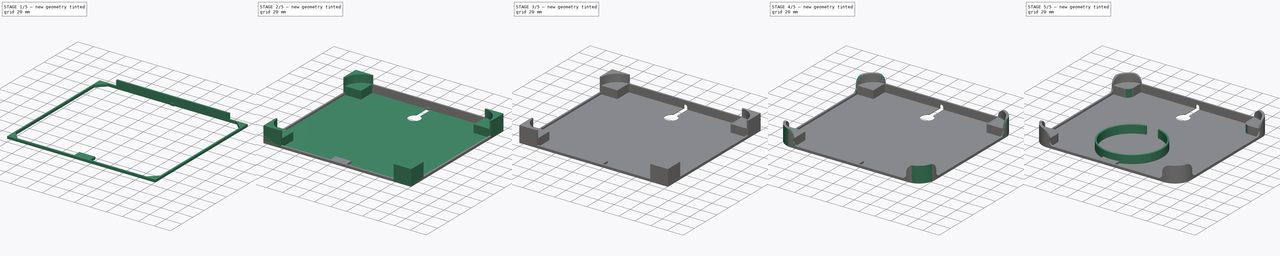
[diagram: build sequence overview — one tinted view per stage of 5, left to right]
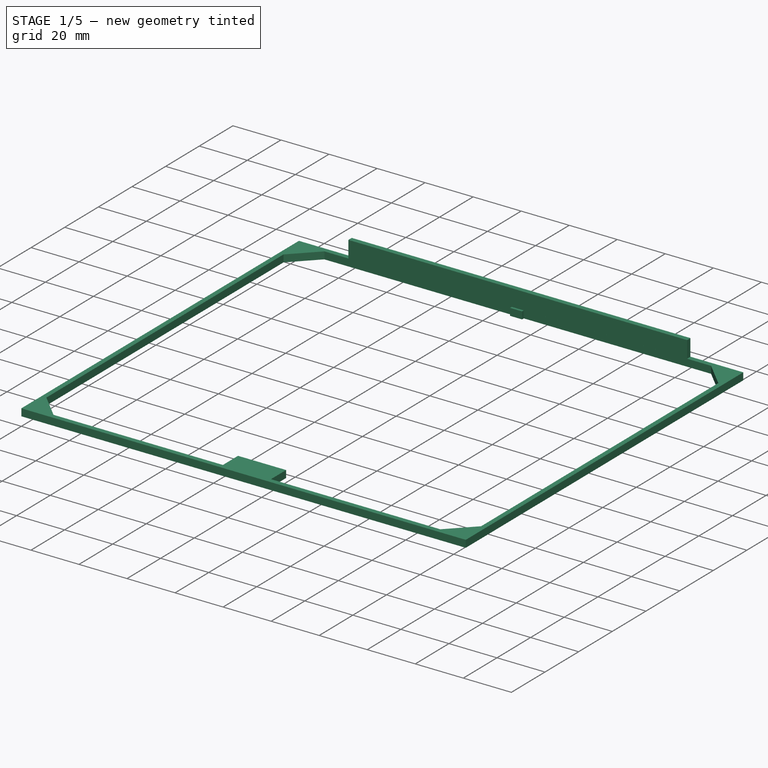
[diagram: stage 1 of 5 — iso view after this stage's code; geometry added in this stage tinted green]
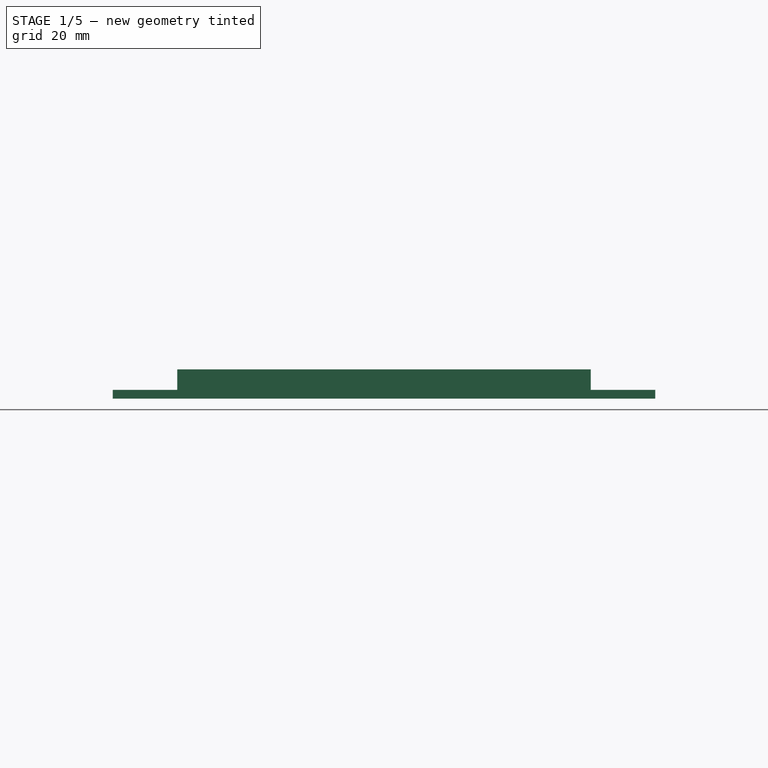
[diagram: stage 1 of 5 — front view after this stage's code; geometry added in this stage tinted green]
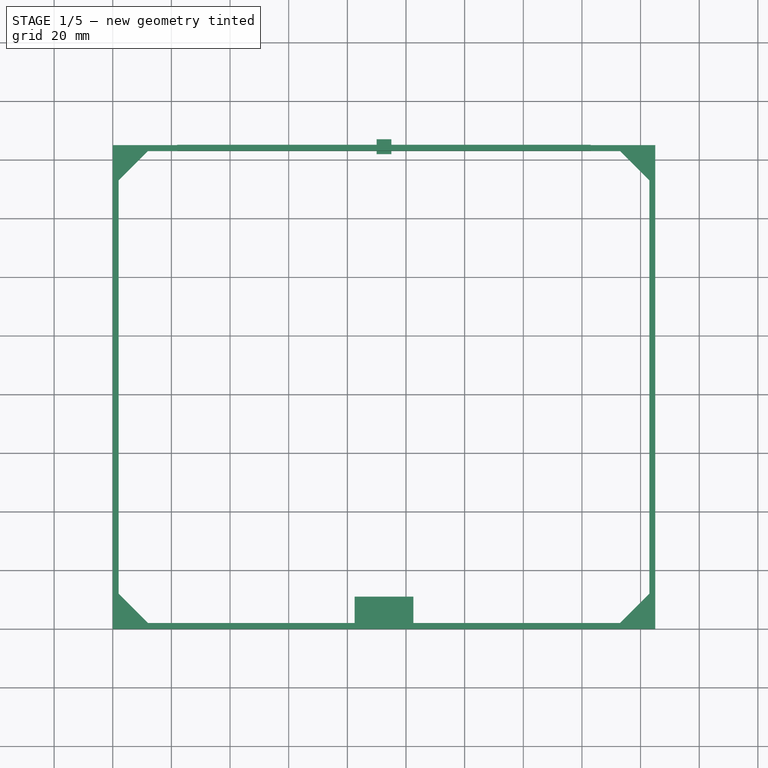
[diagram: stage 1 of 5 — top view after this stage's code; geometry added in this stage tinted green]
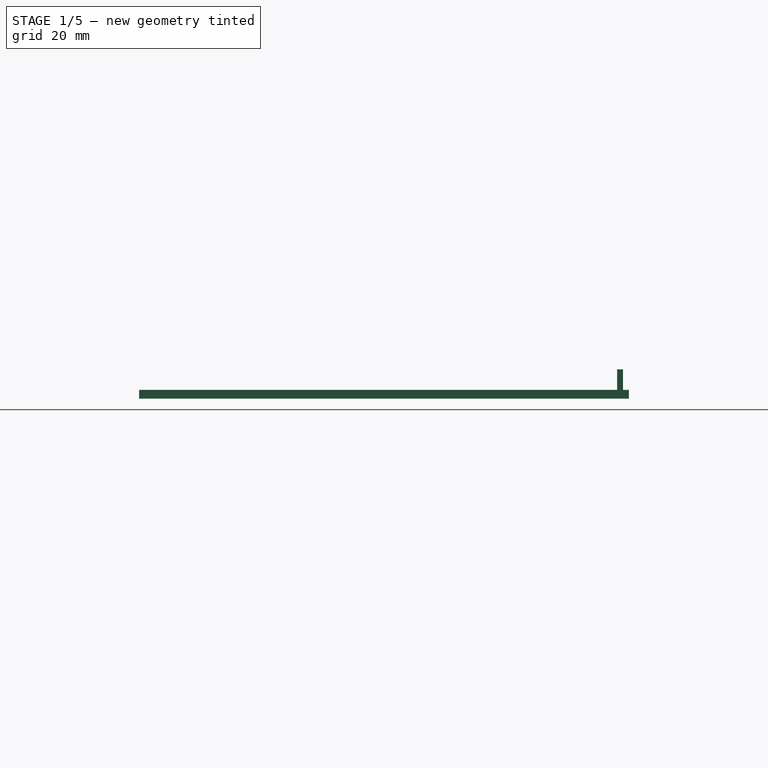
[diagram: stage 1 of 5 — right view after this stage's code; geometry added in this stage tinted green]
FCSTD DOCUMENT  (FreeCAD 0.16R6706 (Git))
Label: WirelessChargerPlatform_1.1
License: All rights reserved
LicenseURL: http://en.wikipedia.org/wiki/All_rights_reserved
objects: Sketcher::SketchObject×6, PartDesign::Pad×6, PartDesign::Fillet×4, Part::Box×3, Part::Cut×3, Part::Cylinder×1, Part::MultiFuse×1
note: 30 computed .brp shape members not serialized (recipe doc carries the construction recipe); baked Part::Feature solids carry a one-line shape summary decoded from their .brp

FEATURE [Sketcher::SketchObject] Sketch006
  sketch-geometry (4):
    g0: LineSegment StartX=82.5 StartY=11 StartZ=0 EndX=102.5 EndY=11 EndZ=0
    g1: LineSegment StartX=102.5 StartY=11 StartZ=0 EndX=102.5 EndY=0 EndZ=0
    g2: LineSegment StartX=102.5 StartY=0 StartZ=0 EndX=82.5 EndY=0 EndZ=0
    g3: LineSegment StartX=82.5 StartY=0 StartZ=0 EndX=82.5 EndY=11 EndZ=0
  constraints (12):
    c: Coincident(g0,g1)
    c: Coincident(g1,g2)
    c: Coincident(g2,g3)
    c: Coincident(g3,g0)
    c: Horizontal(g0)
    c: Horizontal(g2)
    c: Vertical(g1)
    c: Vertical(g3)
    c: DistanceX(g2,g1) = 20
    c: DistanceY(g2,g0) = 11
    c: DistanceX(g-1,g2) = 82.5
    c: DistanceY(g-1,g2) = 0
FEATURE [PartDesign::Pad] Pad006
  Length = 3
  Length2 = 100
  Sketch = -> Sketch006
  Type = 0
FEATURE [Part::Box] Box001  label="Würfel"
  Height = 10
  Length = 141
  Placement = pos=(22,163,0) rot=(0,0,1;0rad)
  Width = 2
FEATURE [PartDesign::Pad] Pad
  Length = 3
  Length2 = 100
  Sketch = -> Sketch
  Type = 0
FEATURE [Part::Box] Box002  label="Würfel001"
  Height = 3
  Length = 5
  Placement = pos=(90,162,0) rot=(0,0,1;0rad)
  Width = 5
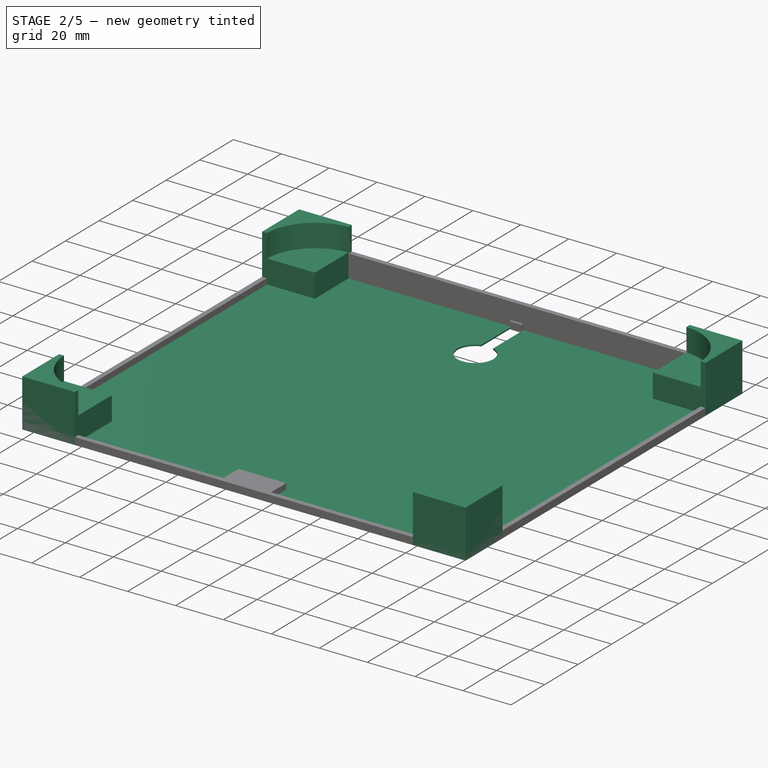
[diagram: stage 2 of 5 — iso view after this stage's code; geometry added in this stage tinted green]
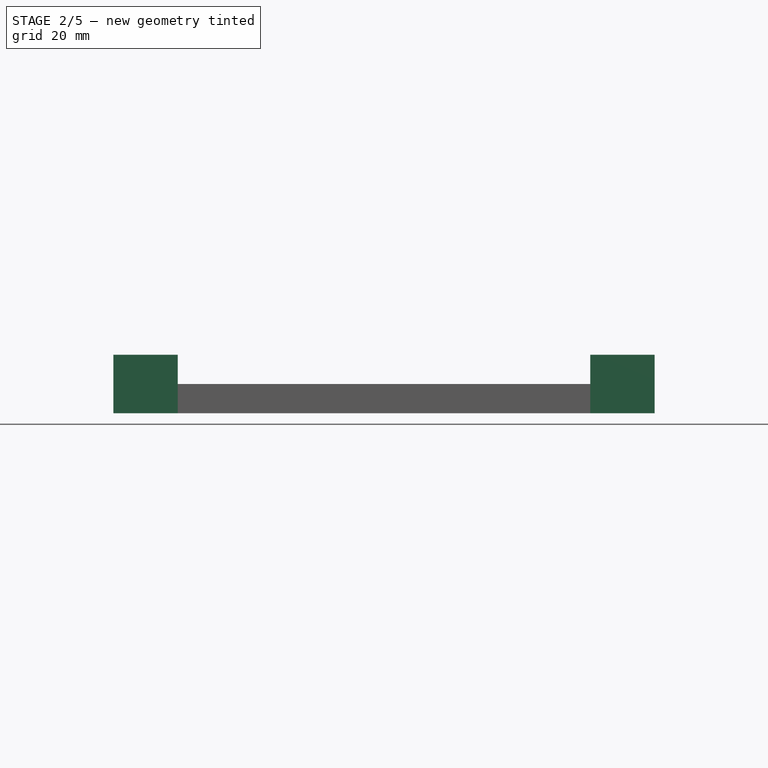
[diagram: stage 2 of 5 — front view after this stage's code; geometry added in this stage tinted green]
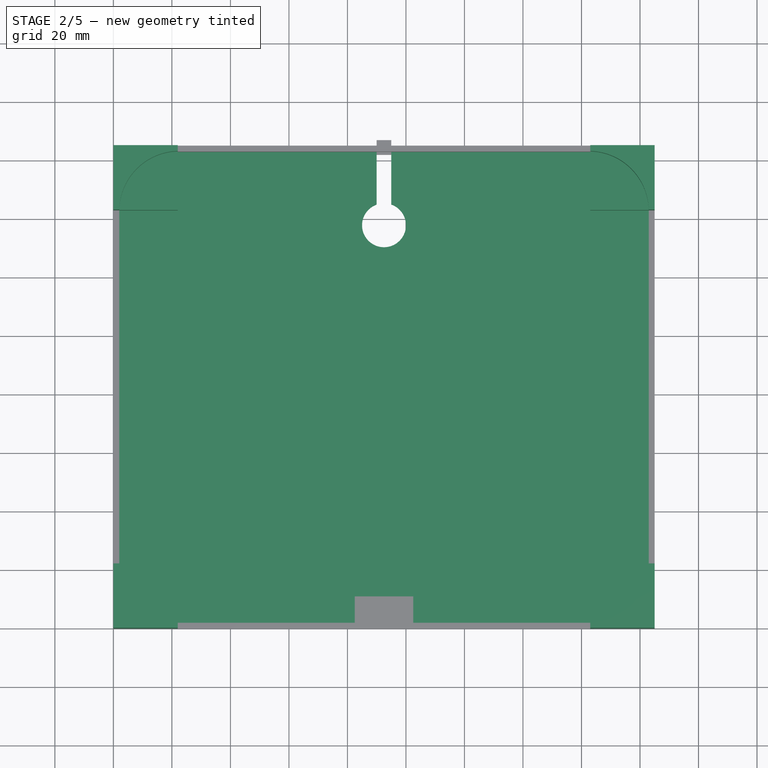
[diagram: stage 2 of 5 — top view after this stage's code; geometry added in this stage tinted green]
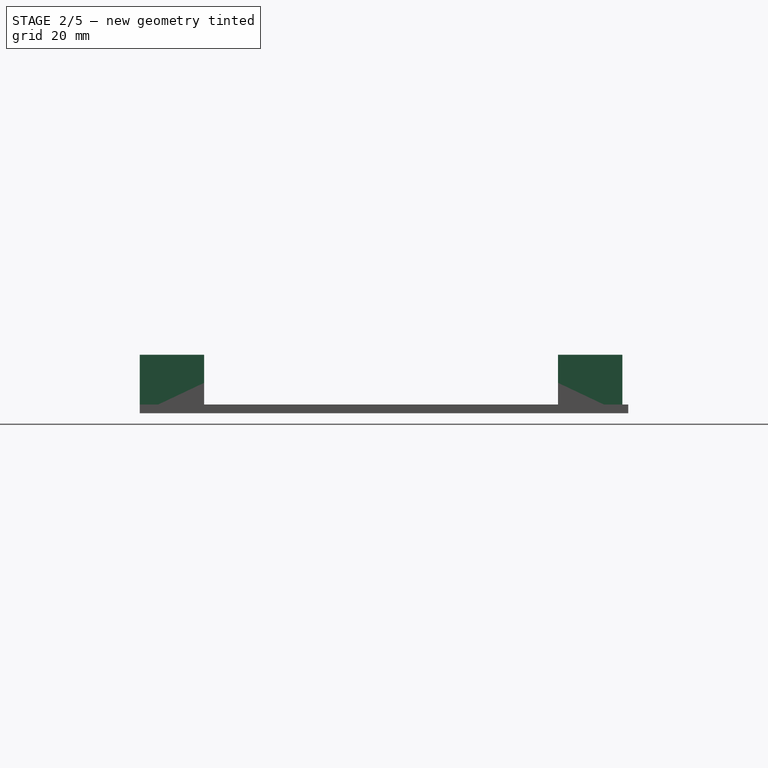
[diagram: stage 2 of 5 — right view after this stage's code; geometry added in this stage tinted green]
FEATURE [Sketcher::SketchObject] Sketch003
  sketch-geometry (16):
    g0: LineSegment StartX=0 StartY=165 StartZ=0 EndX=22 EndY=165 EndZ=0
    g1: LineSegment StartX=22 StartY=165 StartZ=0 EndX=22 EndY=143 EndZ=0
    g2: LineSegment StartX=22 StartY=143 StartZ=0 EndX=0 EndY=143 EndZ=0
    g3: LineSegment StartX=0 StartY=143 StartZ=0 EndX=0 EndY=165 EndZ=0
    g4: LineSegment StartX=185 StartY=165 StartZ=0 EndX=163 EndY=165 EndZ=0
    g5: LineSegment StartX=163 StartY=165 StartZ=0 EndX=163 EndY=143 EndZ=0
    g6: LineSegment StartX=163 StartY=143 StartZ=0 EndX=185 EndY=143 EndZ=0
    g7: LineSegment StartX=185 StartY=143 StartZ=0 EndX=185 EndY=165 EndZ=0
    g8: LineSegment StartX=185 StartY=0 StartZ=0 EndX=163 EndY=0 EndZ=0
    g9: LineSegment StartX=163 StartY=0 StartZ=0 EndX=163 EndY=22 EndZ=0
    g10: LineSegment StartX=163 StartY=22 StartZ=0 EndX=185 EndY=22 EndZ=0
    g11: LineSegment StartX=185 StartY=22 StartZ=0 EndX=185 EndY=0 EndZ=0
    g12: LineSegment StartX=0 StartY=0 StartZ=0 EndX=22 EndY=0 EndZ=0
    g13: LineSegment StartX=22 StartY=0 StartZ=0 EndX=22 EndY=22 EndZ=0
    g14: LineSegment StartX=22 StartY=22 StartZ=0 EndX=0 EndY=22 EndZ=0
    g15: LineSegment StartX=0 StartY=22 StartZ=0 EndX=0 EndY=0 EndZ=0
  constraints (47):
    c: DistanceX(g-1,g0) = 0
    c: DistanceY(g-1,g4) = 165
    c: DistanceX(g-1,g4) = 185
    c: DistanceY(g-1,g8) = 0
    c: DistanceX(g-1,g8) = 185
    c: Coincident(g0,g1)
    c: Coincident(g1,g2)
    c: Coincident(g2,g3)
    c: Coincident(g3,g0)
    c: Horizontal(g0)
    c: Horizontal(g2)
    c: Vertical(g1)
    c: Vertical(g3)
    c: DistanceX(g2,g1) = 22
    c: Coincident(g4,g5)
    c: Coincident(g5,g6)
    c: Coincident(g6,g7)
    c: Coincident(g7,g4)
    c: Horizontal(g4)
    c: Horizontal(g6)
    c: Vertical(g5)
    c: Vertical(g7)
    c: DistanceX(g5,g6) = 22
    c: Coincident(g8,g9)
    c: Coincident(g9,g10)
    c: Coincident(g10,g11)
    c: Coincident(g11,g8)
    c: Horizontal(g8)
    c: Horizontal(g10)
    c: Vertical(g9)
    c: Vertical(g11)
    c: DistanceX(g8,g8) = 22
    c: Coincident(g12,g13)
    c: Coincident(g13,g14)
    c: Coincident(g14,g15)
    c: Coincident(g15,g12)
    c: Horizontal(g12)
    c: Horizontal(g14)
    c: Vertical(g13)
    c: Vertical(g15)
    c: Coincident(g12,g-1)
    c: DistanceX(g14,g13) = 22
    c: DistanceY(g-1,g0) = 165
    c: DistanceY(g-1,g14) = 22
    c: DistanceY(g8,g9) = 22
    c: DistanceY(g6,g4) = 22
    c: DistanceY(g2,g0) = 22
FEATURE [PartDesign::Pad] Pad003
  Length = 10.4
  Length2 = 100
  Sketch = -> Sketch003
  Type = 0
FEATURE [Sketcher::SketchObject] Sketch004
  sketch-geometry (20):
    g0: LineSegment StartX=0 StartY=165 StartZ=0 EndX=0 EndY=143 EndZ=0
    g1: LineSegment StartX=0 StartY=165 StartZ=0 EndX=22 EndY=165 EndZ=0
    g2: LineSegment StartX=0 StartY=143 StartZ=0 EndX=2.0061 EndY=143 EndZ=0
    g3: LineSegment StartX=185 StartY=165 StartZ=0 EndX=163 EndY=165 EndZ=0
    g4: LineSegment StartX=185 StartY=165 StartZ=0 EndX=185 EndY=143 EndZ=0
    g5: LineSegment StartX=185 StartY=143 StartZ=0 EndX=182.994 EndY=143 EndZ=0
    g6: LineSegment StartX=163 StartY=165 StartZ=0 EndX=163 EndY=162.994 EndZ=0
    g7: LineSegment StartX=22 StartY=162.994 StartZ=0 EndX=22 EndY=165 EndZ=0
    g8: ArcOfCircle CenterX=22.5 CenterY=142.5 CenterZ=0 NormalX=0 NormalY=0 NormalZ=1 Radius=20.5 StartAngle=1.59519 EndAngle=3.1172
    g9: ArcOfCircle CenterX=162.5 CenterY=142.5 CenterZ=0 NormalX=0 NormalY=0 NormalZ=1 Radius=20.5 StartAngle=0.0243927 EndAngle=1.5464
    g10: LineSegment StartX=185 StartY=22 StartZ=0 EndX=185 EndY=0 EndZ=0
    g11: LineSegment StartX=185 StartY=0 StartZ=0 EndX=163 EndY=0 EndZ=0
    g12: LineSegment StartX=163 StartY=0 StartZ=0 EndX=163 EndY=2 EndZ=0
    g13: LineSegment StartX=185 StartY=22 StartZ=0 EndX=183 EndY=22 EndZ=0
    g14: ArcOfCircle CenterX=162.506 CenterY=22.494 CenterZ=0 NormalX=0 NormalY=0 NormalZ=1 Radius=20.5 StartAngle=4.73649 EndAngle=6.25908
    g15: LineSegment StartX=0 StartY=0 StartZ=0 EndX=22 EndY=0 EndZ=0
    g16: LineSegment StartX=0 StartY=0 StartZ=0 EndX=0 EndY=22 EndZ=0
    g17: LineSegment StartX=0 StartY=22 StartZ=0 EndX=2 EndY=22 EndZ=0
    g18: LineSegment StartX=22 StartY=0 StartZ=0 EndX=22 EndY=2 EndZ=0
    g19: ArcOfCircle CenterX=22.5 CenterY=22.5 CenterZ=0 NormalX=0 NormalY=0 NormalZ=1 Radius=20.5061 StartAngle=3.16598 EndAngle=4.688
  constraints (63):
    c: PointOnObject(g0,g-2)
    c: Vertical(g0)
    c: Coincident(g1,g0)
    c: Horizontal(g1)
    c: Coincident(g2,g0)
    c: Horizontal(g3)
    c: Coincident(g4,g3)
    c: Vertical(g4)
    c: Coincident(g5,g4)
    c: Coincident(g6,g3)
    c: DistanceX(g3,g6) = 0
    c: DistanceX(g3,g3) = 22
    c: DistanceY(g4,g3) = 22
    c: DistanceY(g-1,g3) = 165
    c: DistanceX(g-1,g3) = 185
    c: DistanceY(g5,g4) = 0
    c: DistanceX(g0,g1) = 22
    c: DistanceY(g0,g0) = 22
    c: Coincident(g7,g1)
    c: DistanceX(g1,g7) = 0
    c: DistanceY(g2,g0) = 0
    c: DistanceY(g-1,g0) = 165
    c: Coincident(g8,g7)
    c: Coincident(g8,g2)
    c: Radius(g8) = 20.5
    c: DistanceX(g0,g8) = 22.5
    c: DistanceY(g8,g1) = 22.5
    c: Coincident(g9,g6)
    c: Coincident(g9,g5)
    c: Radius(g9) = 20.5
    c: DistanceY(g9,g3) = 22.5
    c: DistanceX(g9,g4) = 22.5
    c: PointOnObject(g10,g-1)
    c: Vertical(g10)
    c: Coincident(g11,g10)
    c: PointOnObject(g11,g-1)
    c: Coincident(g12,g11)
    c: Vertical(g12)
    c: Coincident(g13,g10)
    c: Horizontal(g13)
    c: DistanceY(g10,g10) = 22
    c: DistanceX(g11,g10) = 22
    c: DistanceX(g13,g10) = 2
    c: DistanceY(g11,g12) = 2
    c: Coincident(g14,g12)
    c: Coincident(g14,g13)
    c: Radius(g14) = 20.5
    c: DistanceX(g-1,g10) = 185
    c: Coincident(g15,g-1)
    c: PointOnObject(g15,g-1)
    c: Coincident(g16,g-1)
    c: Vertical(g16)
    c: DistanceY(g-1,g16) = 22
    c: DistanceX(g-1,g15) = 22
    c: Coincident(g17,g16)
    c: Horizontal(g17)
    c: Coincident(g18,g15)
    c: Vertical(g18)
    c: DistanceY(g15,g18) = 2
    c: DistanceX(g16,g17) = 2
    c: Coincident(g19,g17)
    c: Coincident(g19,g18)
    c: DistanceY(g-1,g19) = 22.5
FEATURE [PartDesign::Pad] Pad004
  Length = 20
  Length2 = 100
  Sketch = -> Sketch004
  Type = 0
FEATURE [Sketcher::SketchObject] Sketch005
  sketch-geometry (8):
    g0: LineSegment StartX=185 StartY=165 StartZ=0 EndX=185 EndY=0 EndZ=0
    g1: LineSegment StartX=185 StartY=0 StartZ=0 EndX=0 EndY=0 EndZ=0
    g2: LineSegment StartX=0 StartY=0 StartZ=0 EndX=0 EndY=165 EndZ=0
    g3: LineSegment StartX=0 StartY=165 StartZ=0 EndX=90 EndY=165 EndZ=0
    g4: LineSegment StartX=185 StartY=165 StartZ=0 EndX=95 EndY=165 EndZ=0
    g5: LineSegment StartX=90 StartY=165 StartZ=0 EndX=90 EndY=145 EndZ=0
    g6: LineSegment StartX=95 StartY=165 StartZ=0 EndX=95 EndY=145 EndZ=0
    g7: ArcOfCircle CenterX=92.5 CenterY=137.929 CenterZ=0 NormalX=0 NormalY=0 NormalZ=1 Radius=7.5 StartAngle=1.91063 EndAngle=7.51414
  constraints (25):
    c: Coincident(g0,g1)
    c: Coincident(g1,g2)
    c: Horizontal(g1)
    c: Vertical(g0)
    c: Vertical(g2)
    c: DistanceY(g1,g-1) = 0
    c: DistanceX(g-1,g1) = 0
    c: DistanceX(g1,g0) = 185
    c: DistanceY(g1,g2) = 165
    c: Coincident(g3,g2)
    c: Horizontal(g3)
    c: Coincident(g4,g0)
    c: Horizontal(g4)
    c: Coincident(g5,g3)
    c: Vertical(g5)
    c: Coincident(g6,g4)
    c: Vertical(g6)
    c: DistanceY(g5,g3) = 20
    c: DistanceY(g6,g4) = 20
    c: DistanceY(g-1,g0) = 165
    c: DistanceX(g2,g3) = 90
    c: DistanceX(g4,g0) = 90
    c: Coincident(g7,g5)
    c: Coincident(g7,g6)
    c: Radius(g7) = 7.5
FEATURE [PartDesign::Pad] Pad005
  Length = 0.6
  Length2 = 100
  Sketch = -> Sketch005
  Type = 0
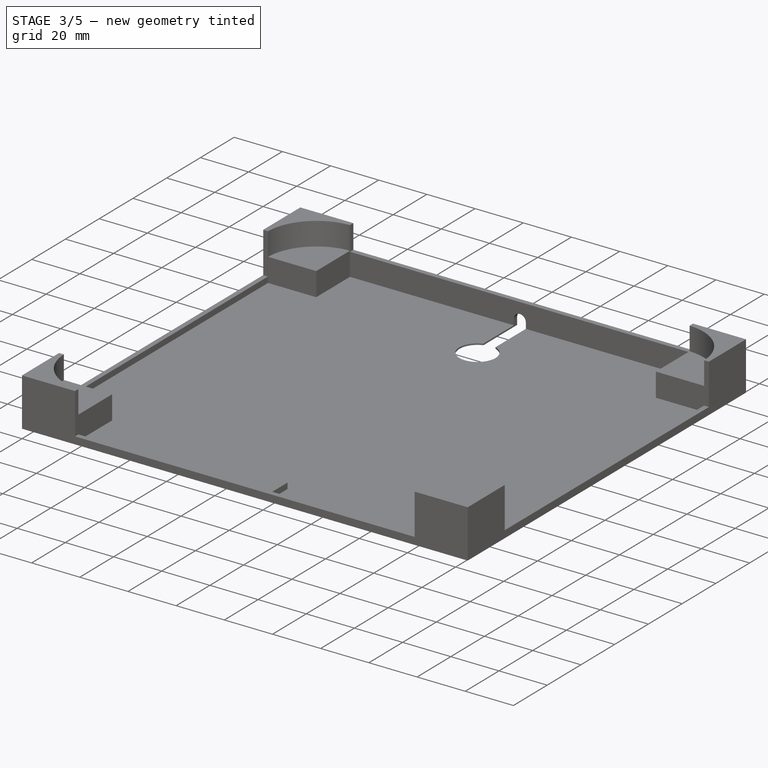
[diagram: stage 3 of 5 — iso view after this stage's code; geometry added in this stage tinted green]
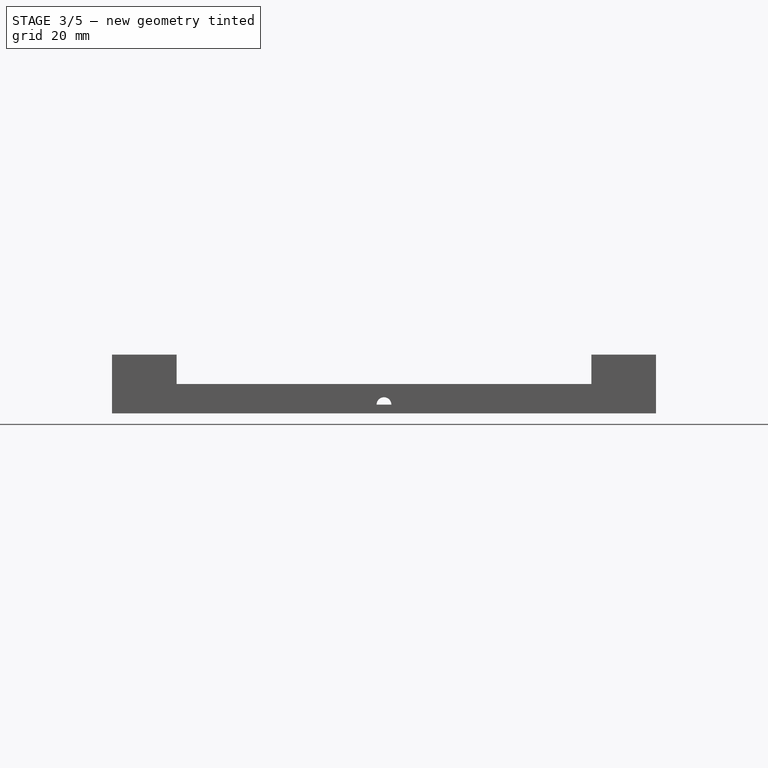
[diagram: stage 3 of 5 — front view after this stage's code; geometry added in this stage tinted green]
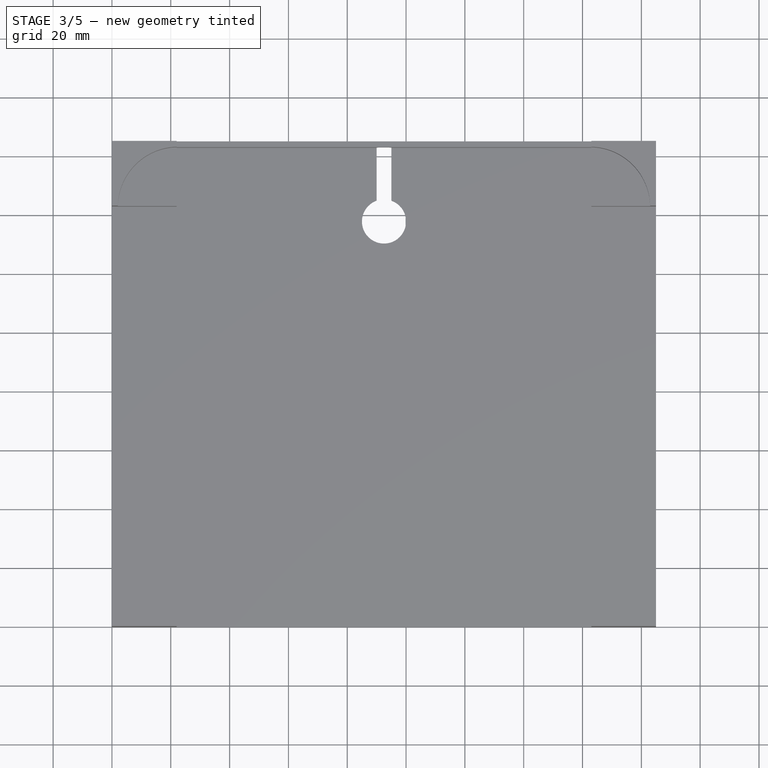
[diagram: stage 3 of 5 — top view after this stage's code; geometry added in this stage tinted green]
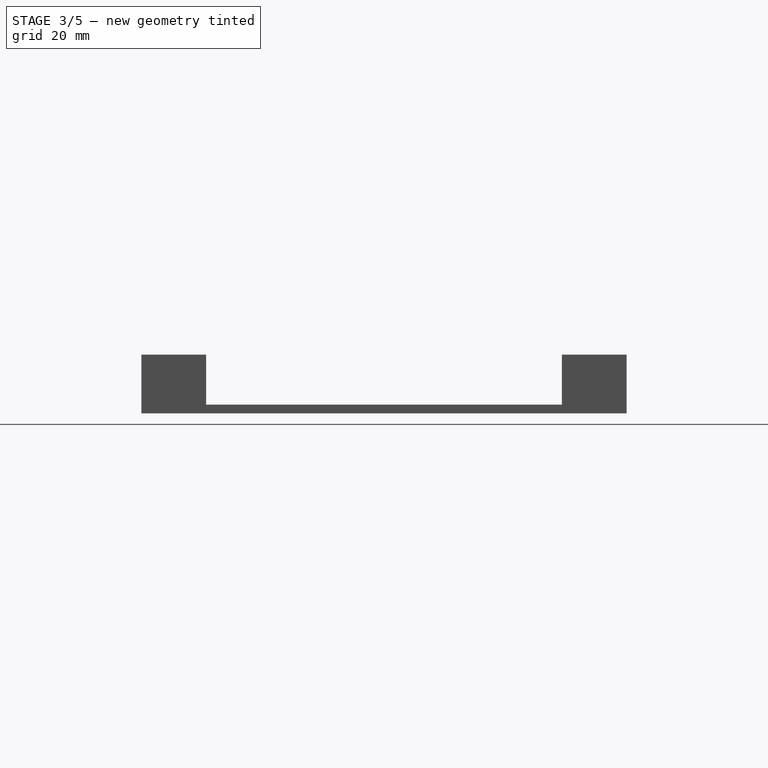
[diagram: stage 3 of 5 — right view after this stage's code; geometry added in this stage tinted green]
FEATURE [Part::Cylinder] Cylinder  label="Zylinder"
  Angle = 360
  Height = 5
  Placement = pos=(92.5,166,3) rot=(1,0,0;1.5708rad)
  Radius = 2.5
FEATURE [Part::MultiFuse] Fusion
  Shapes = -> [Pad006,Pad005,Pad004,Pad003,Pad,Box001]
FEATURE [Part::Cut] Cut001
  Base = -> Fusion
  Tool = -> Cylinder
FEATURE [Part::Cut] Cut002
  Base = -> Cut001
  Tool = -> Box002
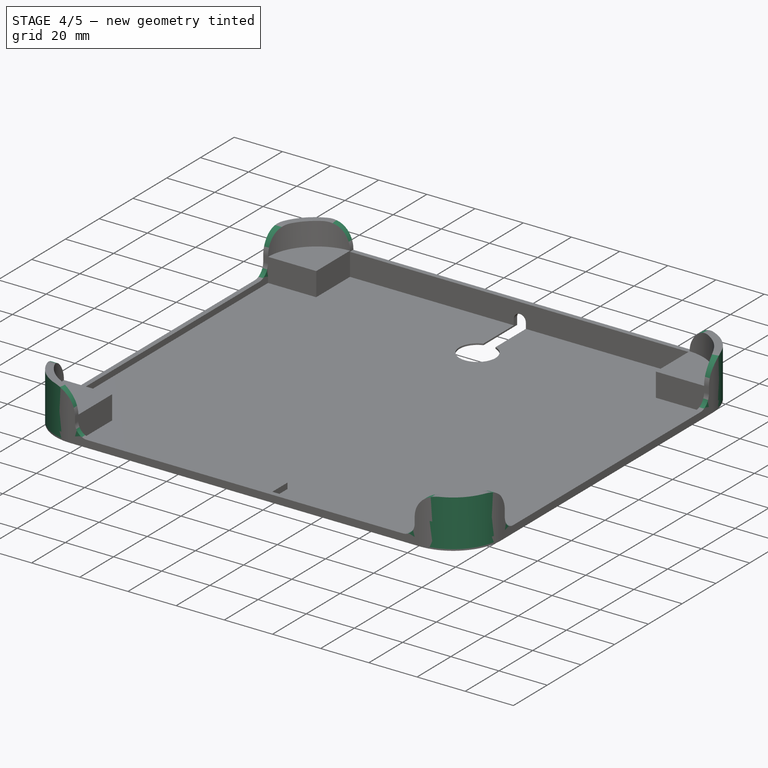
[diagram: stage 4 of 5 — iso view after this stage's code; geometry added in this stage tinted green]
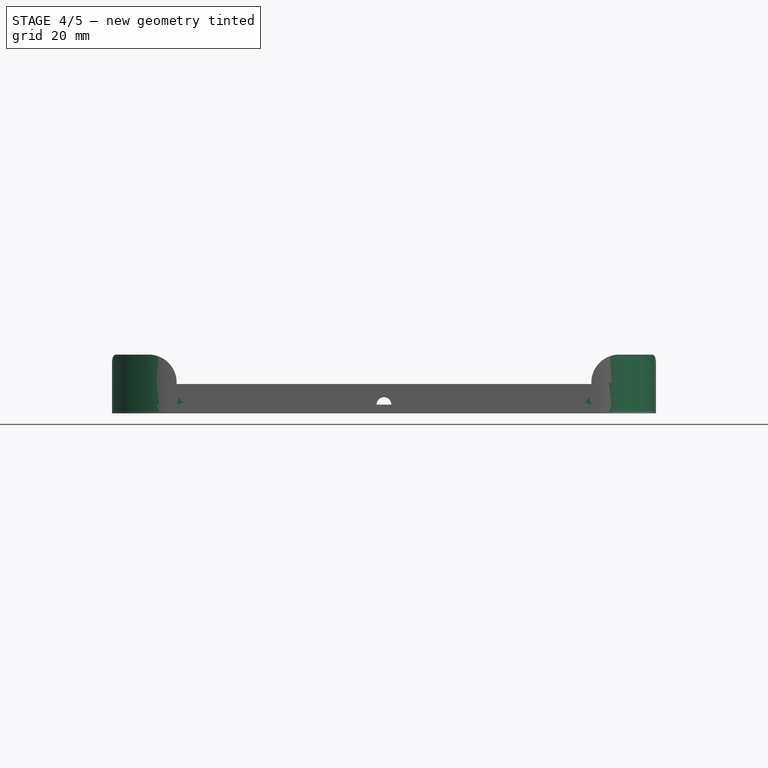
[diagram: stage 4 of 5 — front view after this stage's code; geometry added in this stage tinted green]
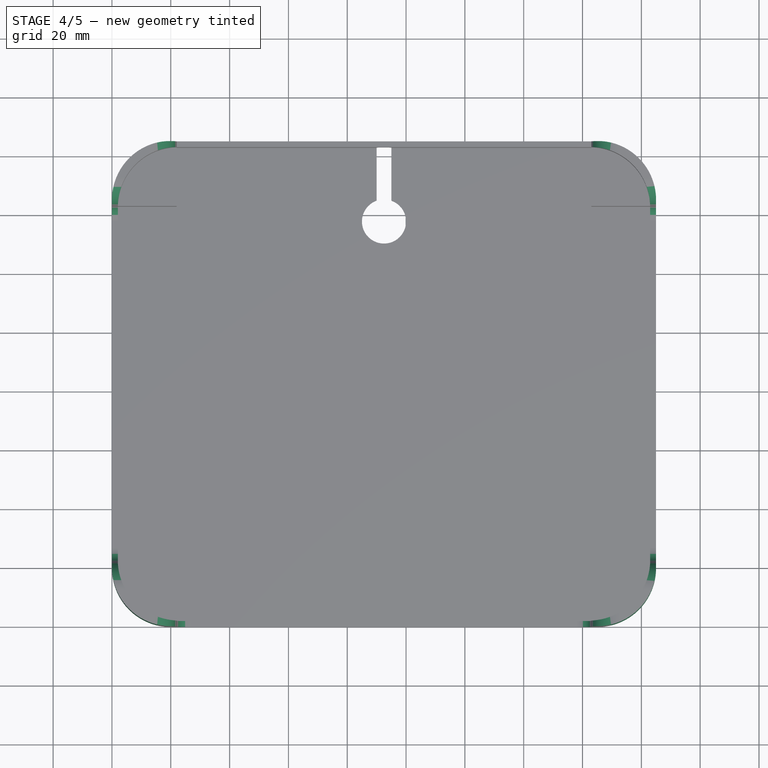
[diagram: stage 4 of 5 — top view after this stage's code; geometry added in this stage tinted green]
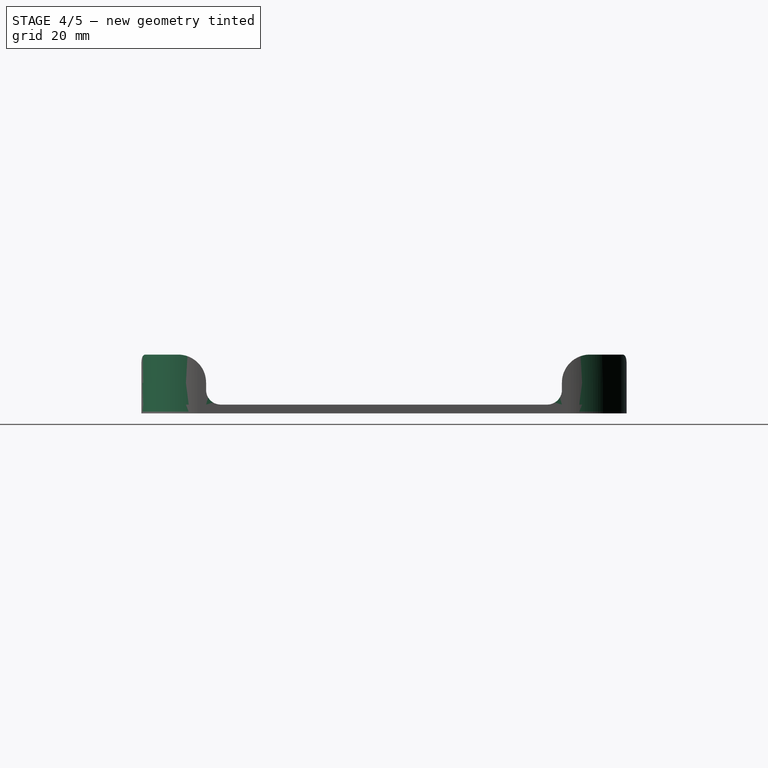
[diagram: stage 4 of 5 — right view after this stage's code; geometry added in this stage tinted green]
FEATURE [PartDesign::Fillet] Fillet
  Base = -> Cut002 [Edge84,Edge156,Edge150,Edge112,Edge99,Edge44]
  Radius = 5
FEATURE [PartDesign::Fillet] Fillet001
  Base = -> Fillet [Edge285,Edge281,Edge219,Edge226,Edge61,Edge155,Edge145,Edge240]
  Radius = 9.5
FEATURE [PartDesign::Fillet] Fillet002
  Base = -> Fillet001 [Edge347,Edge233,Edge20,Edge309]
  Radius = 20
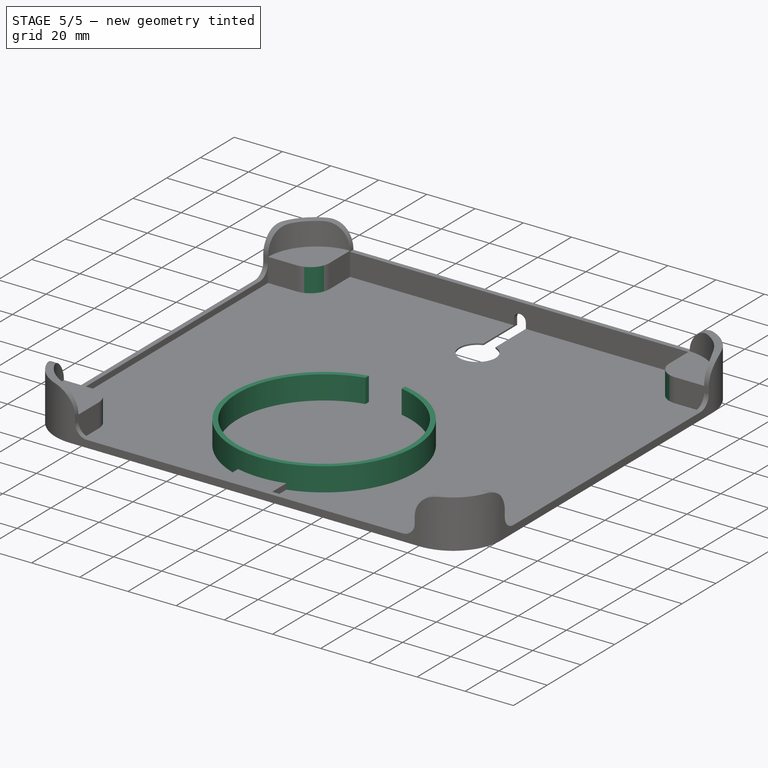
[diagram: stage 5 of 5 — iso view after this stage's code; geometry added in this stage tinted green]
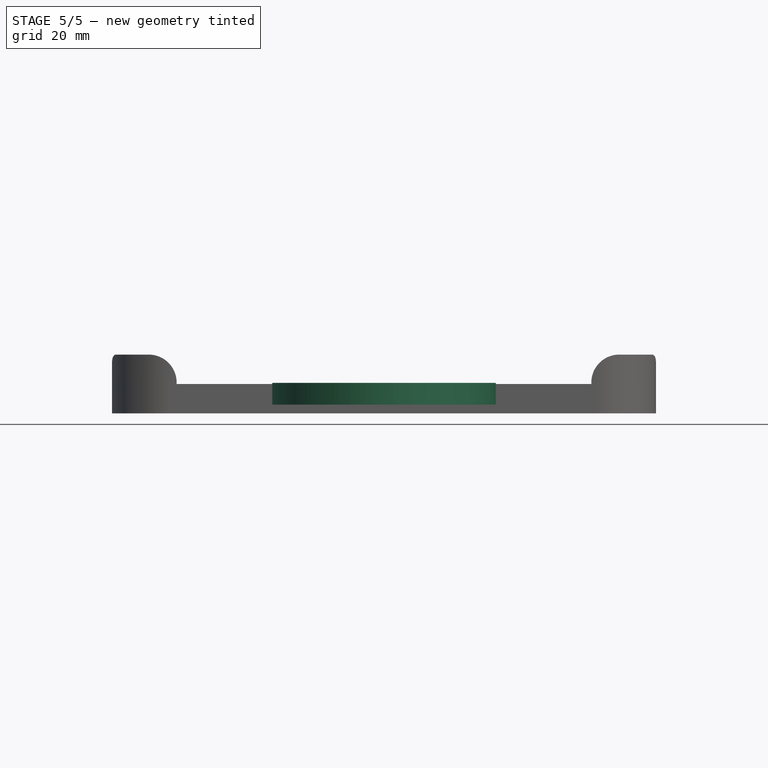
[diagram: stage 5 of 5 — front view after this stage's code; geometry added in this stage tinted green]
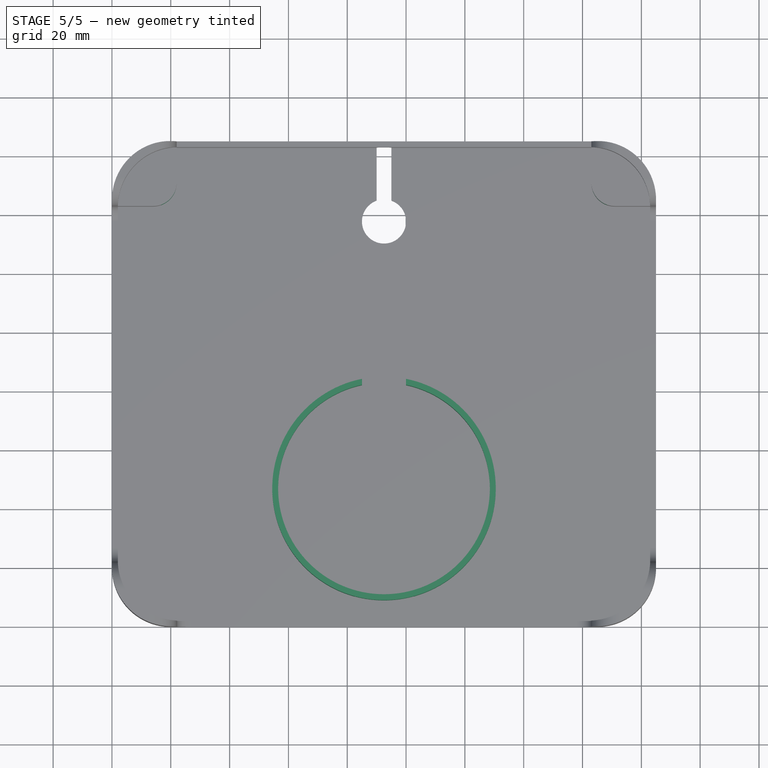
[diagram: stage 5 of 5 — top view after this stage's code; geometry added in this stage tinted green]
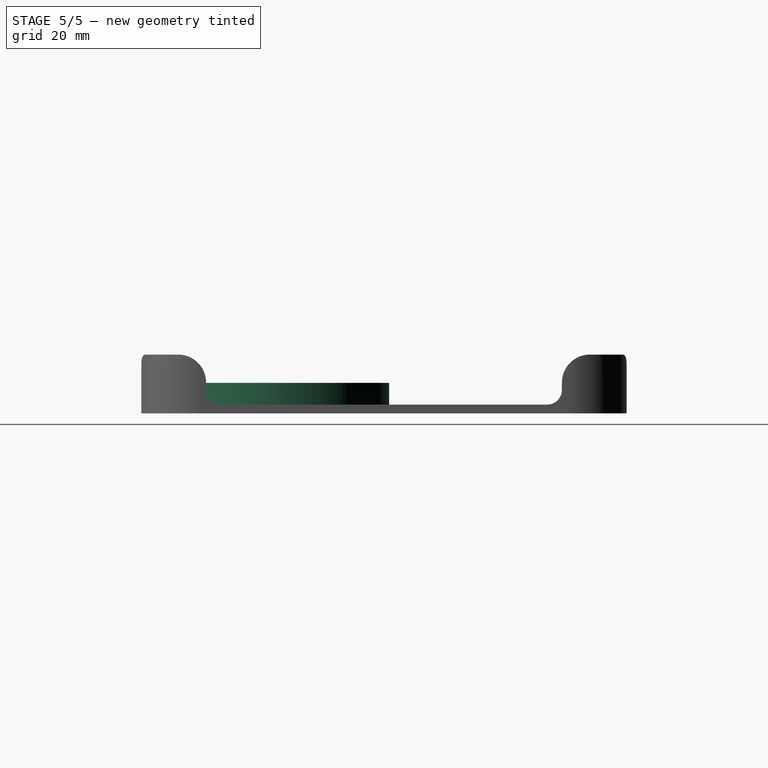
[diagram: stage 5 of 5 — right view after this stage's code; geometry added in this stage tinted green]
FEATURE [Sketcher::SketchObject] Sketch
  sketch-geometry (16):
    g0: LineSegment StartX=0 StartY=0 StartZ=0 EndX=185 EndY=0 EndZ=0
    g1: LineSegment StartX=185 StartY=0 StartZ=0 EndX=185 EndY=165 EndZ=0
    g2: LineSegment StartX=0 StartY=165 StartZ=0 EndX=0 EndY=0 EndZ=0
    g3: LineSegment StartX=173 StartY=2 StartZ=0 EndX=12 EndY=2 EndZ=0
    g4: LineSegment StartX=183 StartY=153 StartZ=0 EndX=183 EndY=12 EndZ=0
    g5: LineSegment StartX=2 StartY=153 StartZ=0 EndX=2 EndY=12 EndZ=0
    g6: LineSegment StartX=2 StartY=153 StartZ=0 EndX=12 EndY=163 EndZ=0
    g7: LineSegment StartX=173 StartY=163 StartZ=0 EndX=183 EndY=153 EndZ=0
    g8: LineSegment StartX=183 StartY=12 StartZ=0 EndX=173 EndY=2 EndZ=0
    g9: LineSegment StartX=2 StartY=12 StartZ=0 EndX=12 EndY=2 EndZ=0
    g10: LineSegment StartX=12 StartY=163 StartZ=0 EndX=90 EndY=163 EndZ=0
    g11: LineSegment StartX=173 StartY=163 StartZ=0 EndX=95 EndY=163 EndZ=0
    g12: LineSegment StartX=0 StartY=165 StartZ=0 EndX=90 EndY=165 EndZ=0
    g13: LineSegment StartX=185 StartY=165 StartZ=0 EndX=95 EndY=165 EndZ=0
    g14: LineSegment StartX=90 StartY=163 StartZ=0 EndX=90 EndY=165 EndZ=0
    g15: LineSegment StartX=95 StartY=163 StartZ=0 EndX=95 EndY=165 EndZ=0
  constraints (46):
    c: Coincident(g0,g1)
    c: Coincident(g2,g0)
    c: Horizontal(g0)
    c: Vertical(g1)
    c: Vertical(g2)
    c: Coincident(g0,g-1)
    c: DistanceX(g2,g1) = 185
    c: DistanceY(g-1,g2) = 165
    c: Horizontal(g3)
    c: DistanceX(g6,g7) = 161
    c: DistanceY(g3,g6) = 161
    c: DistanceX(g-1,g3) = 12
    c: DistanceY(g-1,g3) = 2
    c: DistanceX(g-1,g6) = 12
    c: DistanceX(g3,g3) = 161
    c: Vertical(g4)
    c: DistanceX(g4,g0) = 2
    c: DistanceY(g4,g4) = 141
    c: DistanceY(g0,g4) = 12
    c: Vertical(g5)
    c: DistanceX(g-1,g5) = 2
    c: DistanceY(g-1,g5) = 12
    c: DistanceY(g5,g5) = 141
    c: Coincident(g6,g5)
    c: Coincident(g7,g4)
    c: Coincident(g8,g4)
    c: Coincident(g8,g3)
    c: Coincident(g9,g5)
    c: Coincident(g9,g3)
    c: Coincident(g10,g6)
    c: Horizontal(g10)
    c: Coincident(g11,g7)
    c: Horizontal(g11)
    c: DistanceX(g-1,g10) = 90
    c: DistanceX(g-1,g11) = 95
    c: DistanceY(g-1,g7) = 163
    c: Coincident(g12,g2)
    c: Horizontal(g12)
    c: Coincident(g13,g1)
    c: Horizontal(g13)
    c: DistanceX(g10,g12) = 0
    c: Coincident(g14,g10)
    c: Coincident(g14,g12)
    c: Coincident(g15,g11)
    c: Coincident(g15,g13)
    c: Vertical(g15)
FEATURE [Sketcher::SketchObject] Sketch002
  Placement = pos=(0,0,0.6) rot=(0,0,1;0rad)
  sketch-geometry (2):
    g0: Circle CenterX=92.5 CenterY=47 CenterZ=0 NormalX=0 NormalY=0 NormalZ=1 Radius=38
    g1: Circle CenterX=92.5 CenterY=47 CenterZ=0 NormalX=0 NormalY=0 NormalZ=1 Radius=36
  constraints (5):
    c: Radius(g0) = 38
    c: DistanceY(g-1,g0) = 47
    c: DistanceX(g-1,g0) = 92.5
    c: Coincident(g1,g0)
    c: Radius(g1) = 36
FEATURE [PartDesign::Pad] Pad001
  Length = 9.8
  Length2 = 100
  Placement = pos=(0,0,0.6) rot=(0,0,1;0rad)
  Sketch = -> Sketch002
  Type = 0
FEATURE [Part::Box] Box  label="USB_CONNECTION"
  Height = 10
  Length = 15
  Placement = pos=(85,80,0.6) rot=(0,0,1;0rad)
  Width = 10
FEATURE [Part::Cut] Cut
  Base = -> Pad001
  Tool = -> Box
FEATURE [PartDesign::Fillet] Fillet003
  Base = -> Fillet002 [Edge163,Edge59,Edge112,Edge139]
  Radius = 8
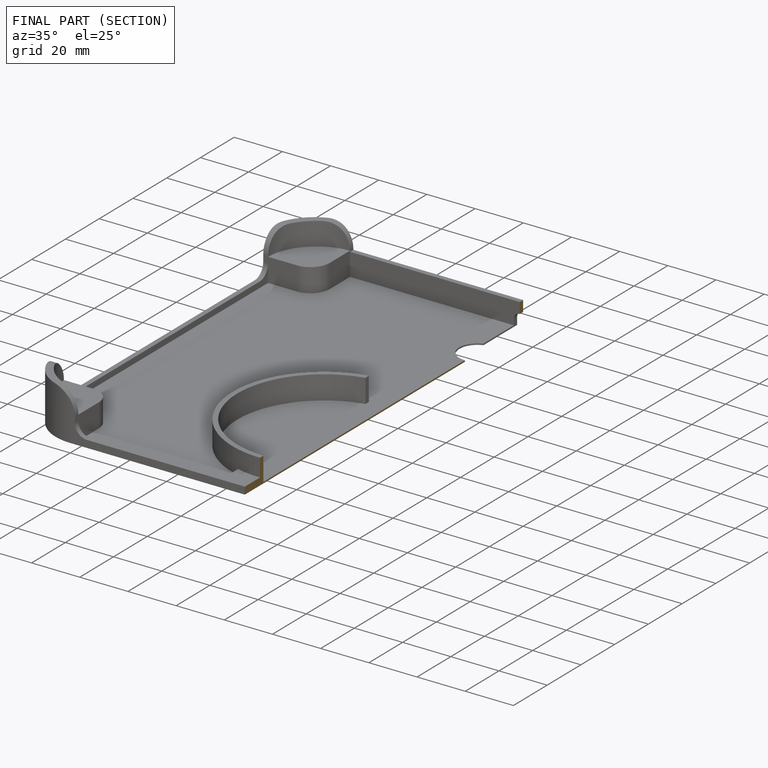
[diagram: finished part — half-section view (interior)]
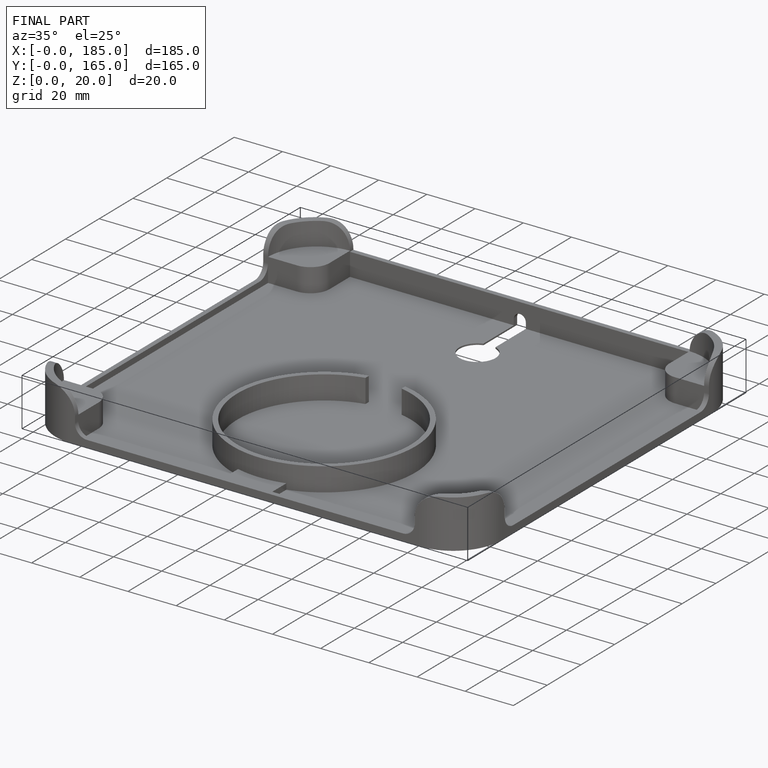
[diagram: finished part — iso view with bounding-box wireframe]
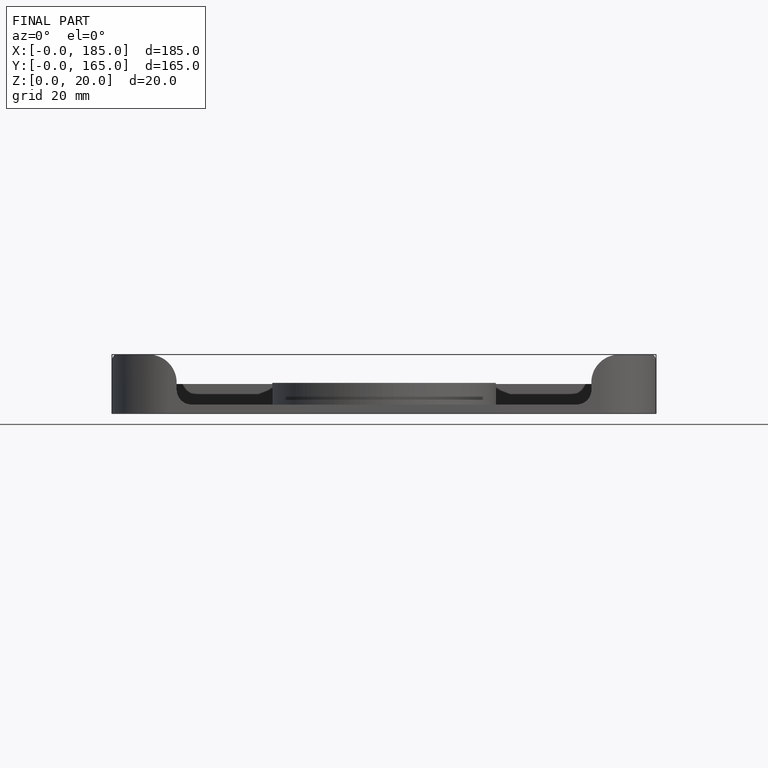
[diagram: finished part — front view with bounding-box wireframe]
